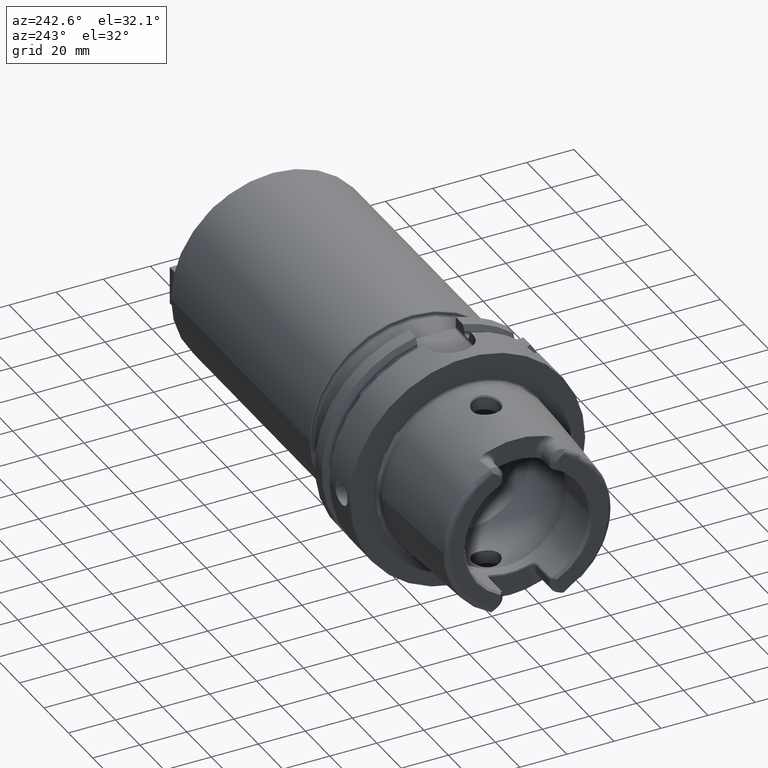
[diagram: clean part render]
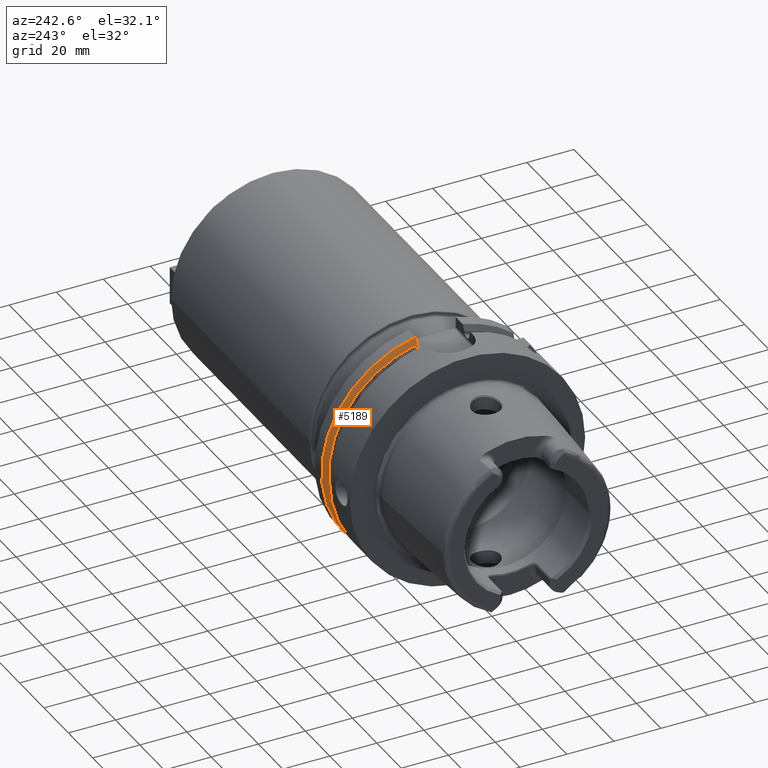
[diagram: same view with one face highlighted and labeled with its STEP entity id]
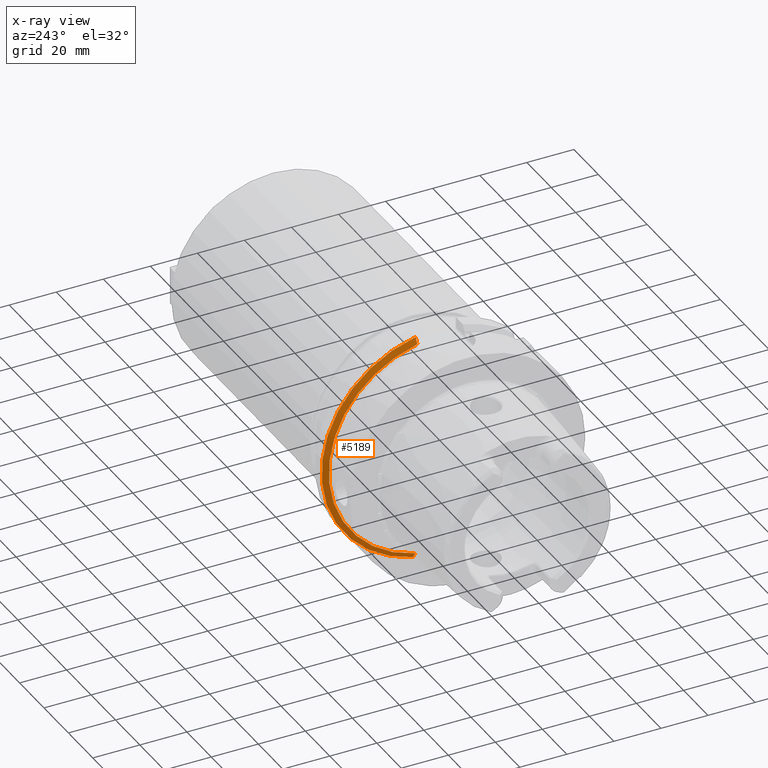
[diagram: x-ray of the same camera — body ghosted, the highlighted face saturated]
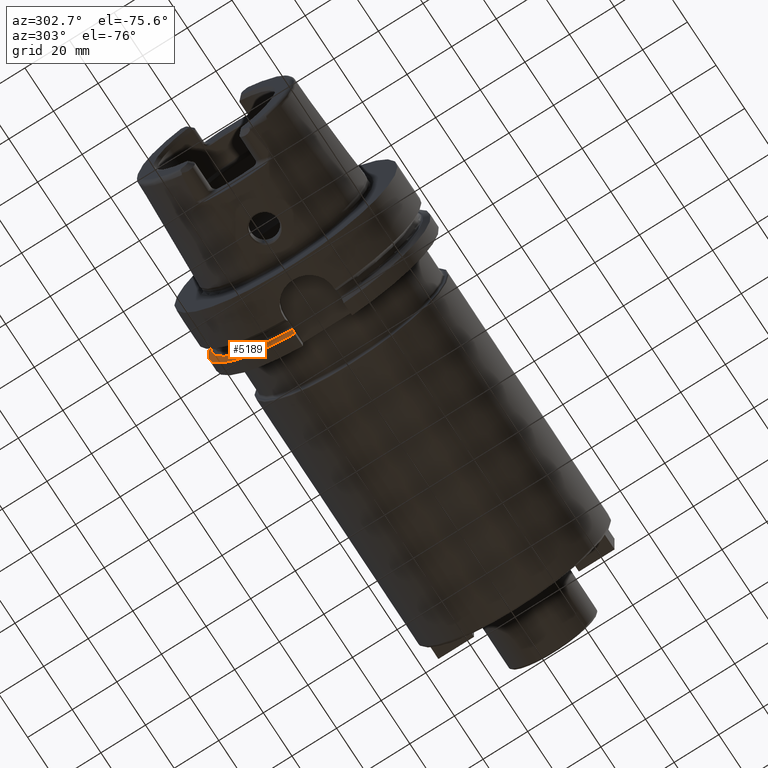
[diagram: same view with one face highlighted and labeled with its STEP entity id]
A machine part, auxiliary view. The second image highlights one B-rep face of the part: STEP entity #5189.
The next image is the same camera in x-ray: the body ghosted, the highlighted face saturated — about 2% of this face is hidden behind the body in this view.
A second angle (auxiliary view) of the same face is appended — the face is thin or edge-on in the first view.
In plain terms, the highlighted conical surface has half-angle 60 deg.
Its self-contained STEP definition (entity closure, byte-faithful):
#1646=CARTESIAN_POINT('',(2.324759526419E1,1.1E1,-4.877499359303E1));
#1647=CARTESIAN_POINT('',(2.309075618244E1,1.1E1,-4.849651763825E1));
#1648=CARTESIAN_POINT('',(2.277996511889E1,1.1E1,-4.794446101512E1));
#1649=CARTESIAN_POINT('',(2.232251548208E1,1.1E1,-4.713119970766E1));
#1650=CARTESIAN_POINT('',(2.202321854676E1,1.1E1,-4.659863454325E1));
#1651=CARTESIAN_POINT('',(2.1875E1,1.1E1,-4.633477721644E1));
#1653=CARTESIAN_POINT('',(2.324759526419E1,0.E0,0.E0));
#1654=DIRECTION('',(1.E0,0.E0,0.E0));
#1655=DIRECTION('',(0.E0,2.2E-1,-9.754998718606E-1));
#1656=AXIS2_PLACEMENT_3D('',#1653,#1654,#1655);
#1658=CARTESIAN_POINT('',(2.1875E1,1.E1,4.656083740331E1));
#1659=CARTESIAN_POINT('',(2.202341485415E1,1.E1,4.682376142925E1));
#1660=CARTESIAN_POINT('',(2.232297392293E1,1.E1,4.735424823675E1));
#1661=CARTESIAN_POINT('',(2.278043311037E1,1.E1,4.816377318979E1));
#1662=CARTESIAN_POINT('',(2.309095690730E1,1.E1,4.871289474479E1));
#1663=CARTESIAN_POINT('',(2.324759526419E1,1.E1,4.898979485566E1));
#1665=CARTESIAN_POINT('',(2.1875E1,0.E0,0.E0));
#1666=DIRECTION('',(-1.E0,0.E0,0.E0));
#1667=DIRECTION('',(0.E0,2.099843560504E-1,9.777047459300E-1));
#1668=AXIS2_PLACEMENT_3D('',#1665,#1666,#1667);
#3332=CARTESIAN_POINT('',(2.1875E1,1.E1,4.656083740331E1));
#3333=VERTEX_POINT('',#3332);
#3335=VERTEX_POINT('',#1663);
#3344=CARTESIAN_POINT('',(2.324759526419E1,1.1E1,-4.877499359303E1));
#3346=VERTEX_POINT('',#3344);
#3372=CARTESIAN_POINT('',(2.1875E1,1.1E1,-4.633477721644E1));
#3373=VERTEX_POINT('',#3372);
#5177=CARTESIAN_POINT('',(2.256129763210E1,0.E0,0.E0));
#5178=DIRECTION('',(1.E0,0.E0,0.E0));
#5179=DIRECTION('',(0.E0,-1.E0,0.E0));
#5180=AXIS2_PLACEMENT_3D('',#5177,#5178,#5179);
#5181=CONICAL_SURFACE('',#5180,4.881129763210E1,6.E1);
#5182=ORIENTED_EDGE('',*,*,#4808,.F.);
#5183=ORIENTED_EDGE('',*,*,#4739,.T.);
#5185=ORIENTED_EDGE('',*,*,#5184,.F.);
#5186=ORIENTED_EDGE('',*,*,#5141,.T.);
#5187=EDGE_LOOP('',(#5182,#5183,#5185,#5186));
#5188=FACE_OUTER_BOUND('',#5187,.F.);
#5189=ADVANCED_FACE('',(#5188),#5181,.T.);
#1652=B_SPLINE_CURVE_WITH_KNOTS('',3,(#1646,#1647,#1648,#1649,#1650,#1651),
.UNSPECIFIED.,.F.,.F.,(4,1,1,4),(0.E0,3.333333333333E-1,6.666666666667E-1,1.E0),
.UNSPECIFIED.);
#1657=CIRCLE('',#1656,5.E1);
#1664=B_SPLINE_CURVE_WITH_KNOTS('',3,(#1658,#1659,#1660,#1661,#1662,#1663),
.UNSPECIFIED.,.F.,.F.,(4,1,1,4),(0.E0,3.333333333333E-1,6.666666666667E-1,1.E0),
.UNSPECIFIED.);
#1669=CIRCLE('',#1668,4.762259526419E1);
#4739=EDGE_CURVE('',#3346,#3335,#1657,.T.);
#4808=EDGE_CURVE('',#3346,#3373,#1652,.T.);
#5141=EDGE_CURVE('',#3333,#3373,#1669,.T.);
#5184=EDGE_CURVE('',#3333,#3335,#1664,.T.);